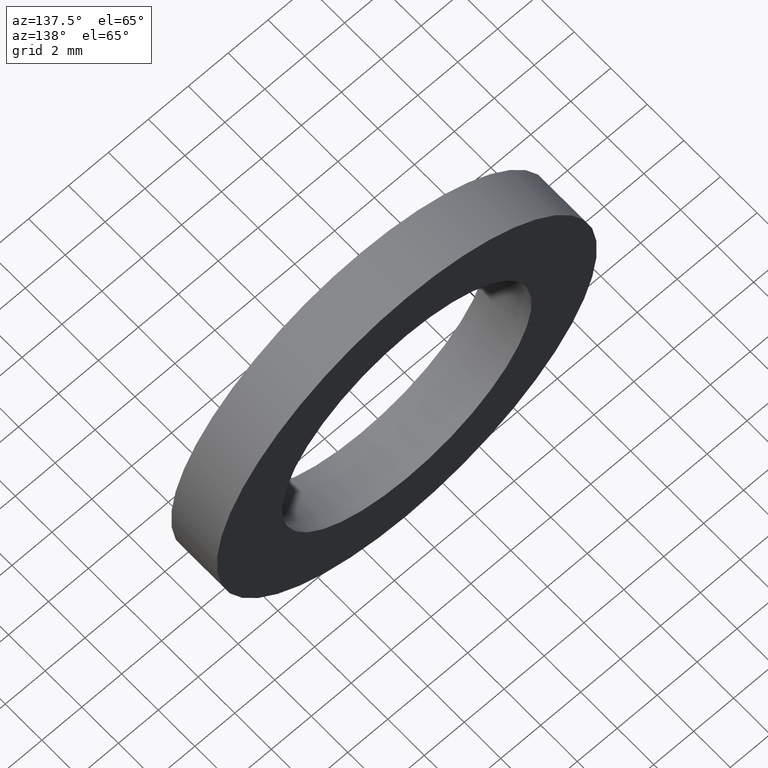
[diagram: clean part render]
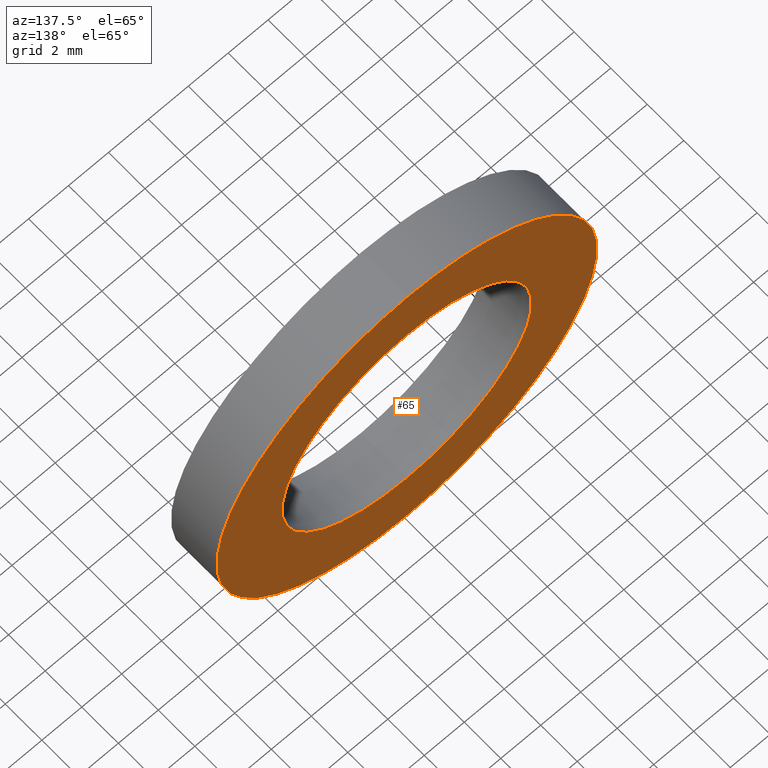
[diagram: same view with one face highlighted and labeled with its STEP entity id]
A machine part, auxiliary view. The second image highlights one B-rep face of the part: STEP entity #65.
In plain terms, the highlighted planar face has unit normal (0, -1, 0).
Its self-contained STEP definition (entity closure, byte-faithful):
#7 = CARTESIAN_POINT ( 'NONE',  ( 1.166476076187855000E-015, 2.500000000000002200, -9.525000000000009200 ) ) ;
#10 = CIRCLE ( 'NONE', #111, 9.525000000000009200 ) ;
#11 = AXIS2_PLACEMENT_3D ( 'NONE', #119, #29, #43 ) ;
#14 = DIRECTION ( 'NONE',  ( 0.0000000000000000000, 0.0000000000000000000, 1.000000000000000000 ) ) ;
#28 = CIRCLE ( 'NONE', #215, 6.250000000000008900 ) ;
#29 = DIRECTION ( 'NONE',  ( -0.0000000000000000000, 1.000000000000000000, -0.0000000000000000000 ) ) ;
#31 = VERTEX_POINT ( 'NONE', #179 ) ;
#36 = EDGE_CURVE ( 'NONE', #31, #226, #237, .T. ) ;
#43 = DIRECTION ( 'NONE',  ( 0.0000000000000000000, 0.0000000000000000000, 1.000000000000000000 ) ) ;
#44 = ORIENTED_EDGE ( 'NONE', *, *, #145, .F. ) ;
#47 = DIRECTION ( 'NONE',  ( -0.0000000000000000000, 1.000000000000000000, -0.0000000000000000000 ) ) ;
#48 = DIRECTION ( 'NONE',  ( 0.0000000000000000000, 0.0000000000000000000, 1.000000000000000000 ) ) ;
#65 = ADVANCED_FACE ( 'NONE', ( #129, #85 ), #87, .F. ) ;
#69 = DIRECTION ( 'NONE',  ( 0.0000000000000000000, -1.000000000000000000, 0.0000000000000000000 ) ) ;
#85 = FACE_OUTER_BOUND ( 'NONE', #172, .T. ) ;
#87 = PLANE ( 'NONE',  #211 ) ;
#89 = ORIENTED_EDGE ( 'NONE', *, *, #36, .F. ) ;
#97 = EDGE_CURVE ( 'NONE', #244, #183, #10, .T. ) ;
#99 = ORIENTED_EDGE ( 'NONE', *, *, #122, .T. ) ;
#103 = DIRECTION ( 'NONE',  ( 0.0000000000000000000, -0.0000000000000000000, -1.000000000000000000 ) ) ;
#104 = CARTESIAN_POINT ( 'NONE',  ( 0.0000000000000000000, 2.500000000000002200, 6.250000000000008900 ) ) ;
#111 = AXIS2_PLACEMENT_3D ( 'NONE', #239, #47, #14 ) ;
#119 = CARTESIAN_POINT ( 'NONE',  ( 0.0000000000000000000, 2.500000000000002200, 0.0000000000000000000 ) ) ;
#120 = CARTESIAN_POINT ( 'NONE',  ( 0.0000000000000000000, 2.500000000000002200, 0.0000000000000000000 ) ) ;
#122 = EDGE_CURVE ( 'NONE', #183, #244, #238, .T. ) ;
#129 = FACE_BOUND ( 'NONE', #190, .T. ) ;
#132 = ORIENTED_EDGE ( 'NONE', *, *, #97, .T. ) ;
#139 = DIRECTION ( 'NONE',  ( -0.0000000000000000000, 1.000000000000000000, -0.0000000000000000000 ) ) ;
#145 = EDGE_CURVE ( 'NONE', #226, #31, #28, .T. ) ;
#164 = DIRECTION ( 'NONE',  ( -0.0000000000000000000, 1.000000000000000000, -0.0000000000000000000 ) ) ;
#168 = CARTESIAN_POINT ( 'NONE',  ( 0.0000000000000000000, 2.500000000000002200, 9.525000000000009200 ) ) ;
#172 = EDGE_LOOP ( 'NONE', ( #99, #132 ) ) ;
#179 = CARTESIAN_POINT ( 'NONE',  ( 7.654042494670968500E-016, 2.500000000000002200, -6.250000000000008900 ) ) ;
#183 = VERTEX_POINT ( 'NONE', #168 ) ;
#184 = DIRECTION ( 'NONE',  ( 0.0000000000000000000, 0.0000000000000000000, 1.000000000000000000 ) ) ;
#190 = EDGE_LOOP ( 'NONE', ( #44, #89 ) ) ;
#195 = AXIS2_PLACEMENT_3D ( 'NONE', #202, #164, #184 ) ;
#202 = CARTESIAN_POINT ( 'NONE',  ( 0.0000000000000000000, 2.500000000000002200, 0.0000000000000000000 ) ) ;
#211 = AXIS2_PLACEMENT_3D ( 'NONE', #218, #69, #103 ) ;
#215 = AXIS2_PLACEMENT_3D ( 'NONE', #120, #139, #48 ) ;
#218 = CARTESIAN_POINT ( 'NONE',  ( 6.250000000000008900, 2.500000000000000000, 0.0000000000000000000 ) ) ;
#226 = VERTEX_POINT ( 'NONE', #104 ) ;
#237 = CIRCLE ( 'NONE', #11, 6.250000000000008900 ) ;
#238 = CIRCLE ( 'NONE', #195, 9.525000000000009200 ) ;
#239 = CARTESIAN_POINT ( 'NONE',  ( 0.0000000000000000000, 2.500000000000002200, 0.0000000000000000000 ) ) ;
#244 = VERTEX_POINT ( 'NONE', #7 ) ;